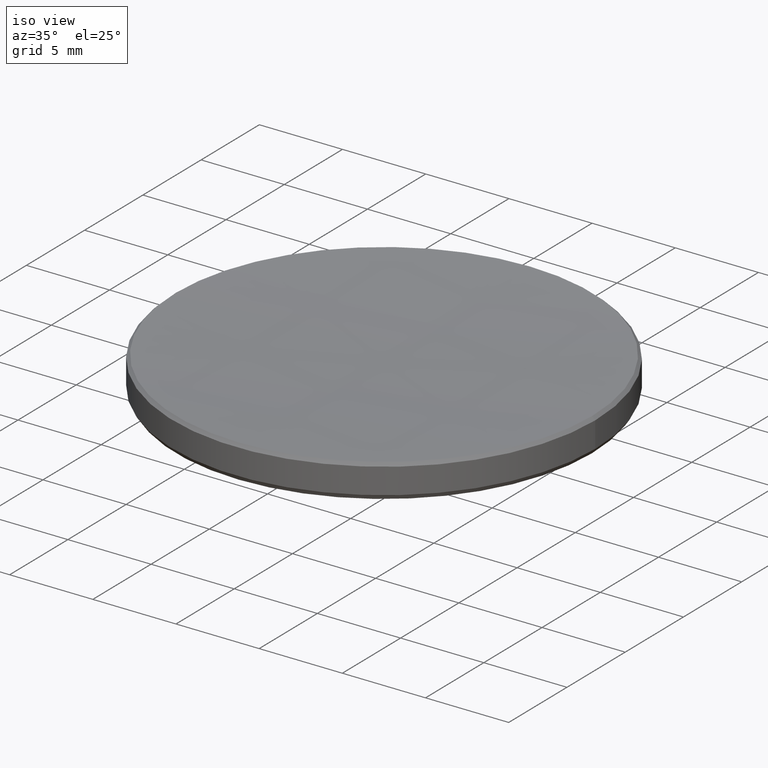
[diagram: clean part render]
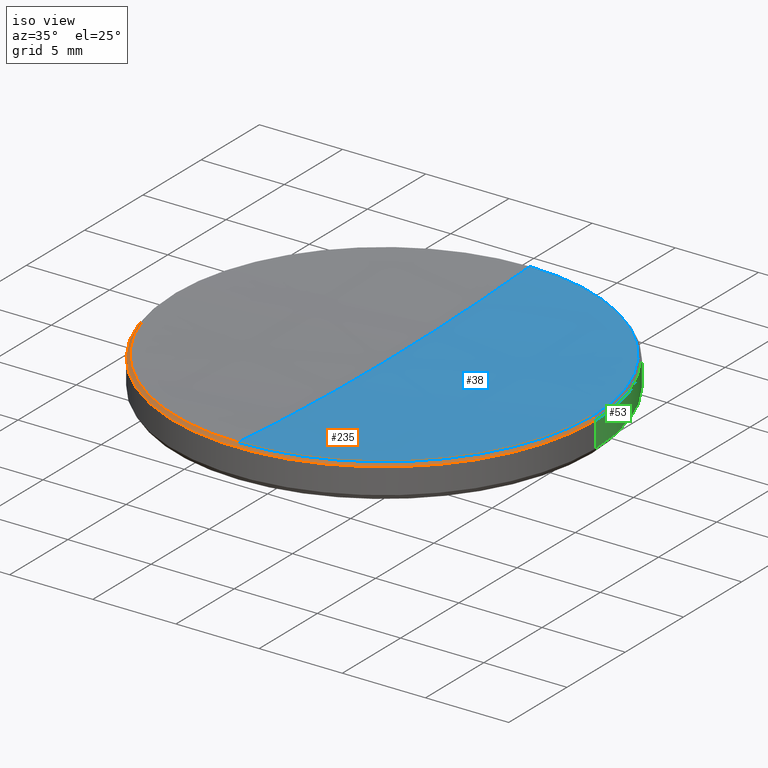
[diagram: same view with three faces highlighted in distinct colors, each labeled with its STEP entity id]
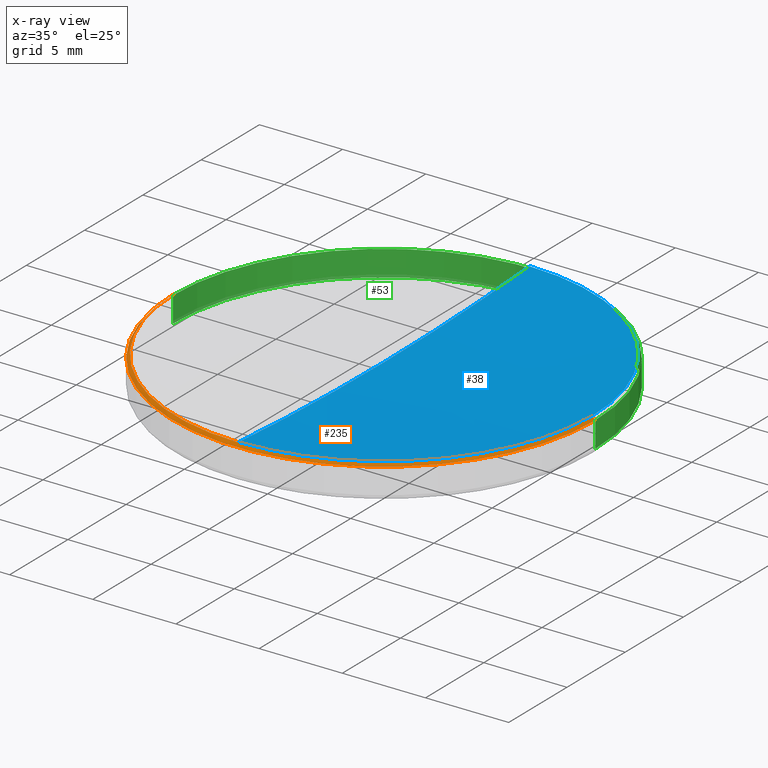
[diagram: x-ray of the same camera — body ghosted, the three highlighted faces saturated]
A machine part, iso view with three faces highlighted in distinct colors.
The next image is the same camera in x-ray (body ghosted, the three faces saturated) — at least one of them is partly hidden behind the body in this view.
Their STEP definitions:

[orange] entity #235 — the highlighted conical surface has half-angle 45 deg.
#5 = EDGE_CURVE ( 'NONE', #220, #319, #159, .T. ) ;
#6 = CARTESIAN_POINT ( 'NONE',  ( 12.51297231911478214, 1.532397149842335037E-15, 5.987027680885242731 ) ) ;
#8 = FACE_OUTER_BOUND ( 'NONE', #143, .T. ) ;
#10 = CARTESIAN_POINT ( 'NONE',  ( -12.69999999999999929, 0.000000000000000000, 5.800000000000027356 ) ) ;
#13 = ORIENTED_EDGE ( 'NONE', *, *, #5, .F. ) ;
#21 = VECTOR ( 'NONE', #104, 1000.000000000000114 ) ;
#25 = AXIS2_PLACEMENT_3D ( 'NONE', #93, #299, #273 ) ;
#34 = AXIS2_PLACEMENT_3D ( 'NONE', #145, #224, #153 ) ;
#57 = LINE ( 'NONE', #163, #21 ) ;
#62 = VECTOR ( 'NONE', #184, 1000.000000000000114 ) ;
#77 = CIRCLE ( 'NONE', #167, 12.51297231911478569 ) ;
#83 = EDGE_CURVE ( 'NONE', #298, #94, #183, .T. ) ;
#84 = CARTESIAN_POINT ( 'NONE',  ( 0.000000000000000000, 0.000000000000000000, 5.987027680885242731 ) ) ;
#93 = CARTESIAN_POINT ( 'NONE',  ( 0.000000000000000000, 0.000000000000000000, 5.987027680885187664 ) ) ;
#94 = VERTEX_POINT ( 'NONE', #10 ) ;
#99 = DIRECTION ( 'NONE',  ( -0.000000000000000000, -0.000000000000000000, 1.000000000000000000 ) ) ;
#104 = DIRECTION ( 'NONE',  ( -0.7071067811865507924, 0.000000000000000000, -0.7071067811865441310 ) ) ;
#109 = EDGE_CURVE ( 'NONE', #319, #166, #77, .T. ) ;
#116 = CONICAL_SURFACE ( 'NONE', #308, 12.51297231911478214, 0.7853981633974530530 ) ;
#143 = EDGE_LOOP ( 'NONE', ( #281, #169, #13, #276, #322 ) ) ;
#145 = CARTESIAN_POINT ( 'NONE',  ( 0.000000000000000000, 0.000000000000000000, 5.800000000000027356 ) ) ;
#153 = DIRECTION ( 'NONE',  ( 1.000000000000000000, 0.000000000000000000, 0.000000000000000000 ) ) ;
#159 = CIRCLE ( 'NONE', #25, 12.51297231911478569 ) ;
#163 = CARTESIAN_POINT ( 'NONE',  ( -12.51297231911478214, 0.000000000000000000, 5.987027680885242731 ) ) ;
#166 = VERTEX_POINT ( 'NONE', #260 ) ;
#167 = AXIS2_PLACEMENT_3D ( 'NONE', #204, #99, #258 ) ;
#169 = ORIENTED_EDGE ( 'NONE', *, *, #109, .F. ) ;
#170 = CARTESIAN_POINT ( 'NONE',  ( -1.532397149842306047E-15, -12.51297231911454411, 5.987027680885187664 ) ) ;
#183 = CIRCLE ( 'NONE', #34, 12.69999999999999929 ) ;
#184 = DIRECTION ( 'NONE',  ( 0.7071067811865507924, 8.659560562354974766E-17, -0.7071067811865441310 ) ) ;
#189 = DIRECTION ( 'NONE',  ( 0.000000000000000000, 0.000000000000000000, -1.000000000000000000 ) ) ;
#204 = CARTESIAN_POINT ( 'NONE',  ( 0.000000000000000000, 0.000000000000000000, 5.987027680885187664 ) ) ;
#207 = EDGE_CURVE ( 'NONE', #166, #298, #287, .T. ) ;
#211 = DIRECTION ( 'NONE',  ( -1.000000000000000000, 0.000000000000000000, 0.000000000000000000 ) ) ;
#212 = CARTESIAN_POINT ( 'NONE',  ( 12.69999999999999929, 1.555301434917138433E-15, 5.800000000000027356 ) ) ;
#219 = EDGE_CURVE ( 'NONE', #220, #94, #57, .T. ) ;
#220 = VERTEX_POINT ( 'NONE', #316 ) ;
#224 = DIRECTION ( 'NONE',  ( 0.000000000000000000, 0.000000000000000000, -1.000000000000000000 ) ) ;
#235 = ADVANCED_FACE ( 'NONE', ( #8 ), #116, .T. ) ;
#258 = DIRECTION ( 'NONE',  ( 1.000000000000000000, 0.000000000000000000, 0.000000000000000000 ) ) ;
#260 = CARTESIAN_POINT ( 'NONE',  ( 12.51297231911478569, 1.543849292379736932E-15, 5.987027680885187664 ) ) ;
#273 = DIRECTION ( 'NONE',  ( 1.000000000000000000, 0.000000000000000000, 0.000000000000000000 ) ) ;
#276 = ORIENTED_EDGE ( 'NONE', *, *, #219, .T. ) ;
#281 = ORIENTED_EDGE ( 'NONE', *, *, #207, .F. ) ;
#287 = LINE ( 'NONE', #6, #62 ) ;
#298 = VERTEX_POINT ( 'NONE', #212 ) ;
#299 = DIRECTION ( 'NONE',  ( -0.000000000000000000, -0.000000000000000000, 1.000000000000000000 ) ) ;
#308 = AXIS2_PLACEMENT_3D ( 'NONE', #84, #189, #211 ) ;
#316 = CARTESIAN_POINT ( 'NONE',  ( -12.51297231911478569, 0.000000000000000000, 5.987027680885187664 ) ) ;
#319 = VERTEX_POINT ( 'NONE', #170 ) ;
#322 = ORIENTED_EDGE ( 'NONE', *, *, #83, .F. ) ;

[blue] entity #38 — the highlighted spherical surface has radius 182.19 mm.
#3 = EDGE_CURVE ( 'NONE', #166, #197, #55, .T. ) ;
#12 = DIRECTION ( 'NONE',  ( -1.000000000000000000, 0.000000000000000000, 0.000000000000000000 ) ) ;
#16 = ORIENTED_EDGE ( 'NONE', *, *, #198, .T. ) ;
#33 = CARTESIAN_POINT ( 'NONE',  ( 0.000000000000000000, 1.115592001683281265E-14, 5.556818679172486952 ) ) ;
#38 = ADVANCED_FACE ( 'NONE', ( #328 ), #148, .F. ) ;
#45 = AXIS2_PLACEMENT_3D ( 'NONE', #252, #294, #321 ) ;
#54 = CIRCLE ( 'NONE', #96, 182.1899999999999977 ) ;
#55 = CIRCLE ( 'NONE', #45, 12.51297231911478569 ) ;
#60 = CARTESIAN_POINT ( 'NONE',  ( 0.000000000000000000, 0.000000000000000000, 187.7468186791724918 ) ) ;
#64 = DIRECTION ( 'NONE',  ( -1.000000000000000000, 1.224646799147353207E-16, 0.000000000000000000 ) ) ;
#65 = VERTEX_POINT ( 'NONE', #33 ) ;
#70 = CARTESIAN_POINT ( 'NONE',  ( 0.000000000000000000, 0.000000000000000000, 187.7468186791724918 ) ) ;
#77 = CIRCLE ( 'NONE', #167, 12.51297231911478569 ) ;
#85 = EDGE_LOOP ( 'NONE', ( #122, #16, #216, #152 ) ) ;
#96 = AXIS2_PLACEMENT_3D ( 'NONE', #290, #64, #265 ) ;
#97 = DIRECTION ( 'NONE',  ( 0.000000000000000000, 1.000000000000000000, 0.000000000000000000 ) ) ;
#99 = DIRECTION ( 'NONE',  ( -0.000000000000000000, -0.000000000000000000, 1.000000000000000000 ) ) ;
#109 = EDGE_CURVE ( 'NONE', #319, #166, #77, .T. ) ;
#122 = ORIENTED_EDGE ( 'NONE', *, *, #310, .F. ) ;
#148 = SPHERICAL_SURFACE ( 'NONE', #234, 182.1899999999999977 ) ;
#152 = ORIENTED_EDGE ( 'NONE', *, *, #3, .T. ) ;
#166 = VERTEX_POINT ( 'NONE', #260 ) ;
#167 = AXIS2_PLACEMENT_3D ( 'NONE', #204, #99, #258 ) ;
#170 = CARTESIAN_POINT ( 'NONE',  ( -1.532397149842306047E-15, -12.51297231911454411, 5.987027680885187664 ) ) ;
#181 = AXIS2_PLACEMENT_3D ( 'NONE', #60, #315, #188 ) ;
#188 = DIRECTION ( 'NONE',  ( 0.000000000000000000, 0.000000000000000000, -1.000000000000000000 ) ) ;
#197 = VERTEX_POINT ( 'NONE', #292 ) ;
#198 = EDGE_CURVE ( 'NONE', #65, #319, #54, .T. ) ;
#204 = CARTESIAN_POINT ( 'NONE',  ( 0.000000000000000000, 0.000000000000000000, 5.987027680885187664 ) ) ;
#216 = ORIENTED_EDGE ( 'NONE', *, *, #109, .T. ) ;
#234 = AXIS2_PLACEMENT_3D ( 'NONE', #70, #12, #97 ) ;
#252 = CARTESIAN_POINT ( 'NONE',  ( 0.000000000000000000, 0.000000000000000000, 5.987027680885187664 ) ) ;
#258 = DIRECTION ( 'NONE',  ( 1.000000000000000000, 0.000000000000000000, 0.000000000000000000 ) ) ;
#260 = CARTESIAN_POINT ( 'NONE',  ( 12.51297231911478569, 1.543849292379736932E-15, 5.987027680885187664 ) ) ;
#265 = DIRECTION ( 'NONE',  ( -1.224646799147352961E-16, -1.000000000000000000, 0.000000000000000000 ) ) ;
#290 = CARTESIAN_POINT ( 'NONE',  ( 0.000000000000000000, 0.000000000000000000, 187.7468186791724918 ) ) ;
#292 = CARTESIAN_POINT ( 'NONE',  ( 0.000000000000000000, 12.51297231911454411, 5.987027680885187664 ) ) ;
#294 = DIRECTION ( 'NONE',  ( -0.000000000000000000, -0.000000000000000000, 1.000000000000000000 ) ) ;
#305 = CIRCLE ( 'NONE', #181, 182.1899999999999977 ) ;
#310 = EDGE_CURVE ( 'NONE', #65, #197, #305, .T. ) ;
#315 = DIRECTION ( 'NONE',  ( 1.000000000000000000, 0.000000000000000000, 0.000000000000000000 ) ) ;
#319 = VERTEX_POINT ( 'NONE', #170 ) ;
#321 = DIRECTION ( 'NONE',  ( 1.000000000000000000, 0.000000000000000000, 0.000000000000000000 ) ) ;
#328 = FACE_OUTER_BOUND ( 'NONE', #85, .T. ) ;

[green] entity #53 — the highlighted cylindrical surface (partial cylindrical patch) has radius 12.7 mm, axis along (-0, -0, -1).
#10 = CARTESIAN_POINT ( 'NONE',  ( -12.69999999999999929, 0.000000000000000000, 5.800000000000027356 ) ) ;
#15 = CARTESIAN_POINT ( 'NONE',  ( 0.000000000000000000, 0.000000000000000000, 10.00000000000000000 ) ) ;
#37 = ORIENTED_EDGE ( 'NONE', *, *, #313, .F. ) ;
#53 = ADVANCED_FACE ( 'NONE', ( #87 ), #173, .T. ) ;
#61 = LINE ( 'NONE', #245, #314 ) ;
#74 = CARTESIAN_POINT ( 'NONE',  ( 0.000000000000000000, 0.000000000000000000, 5.800000000000027356 ) ) ;
#78 = DIRECTION ( 'NONE',  ( -1.000000000000000000, 0.000000000000000000, 0.000000000000000000 ) ) ;
#86 = VECTOR ( 'NONE', #238, 1000.000000000000000 ) ;
#87 = FACE_OUTER_BOUND ( 'NONE', #151, .T. ) ;
#94 = VERTEX_POINT ( 'NONE', #10 ) ;
#95 = DIRECTION ( 'NONE',  ( -1.000000000000000000, 0.000000000000000000, 0.000000000000000000 ) ) ;
#112 = ORIENTED_EDGE ( 'NONE', *, *, #304, .T. ) ;
#124 = AXIS2_PLACEMENT_3D ( 'NONE', #135, #288, #78 ) ;
#125 = AXIS2_PLACEMENT_3D ( 'NONE', #74, #231, #332 ) ;
#135 = CARTESIAN_POINT ( 'NONE',  ( 0.000000000000000000, 0.000000000000000000, 4.253353967830220128 ) ) ;
#151 = EDGE_LOOP ( 'NONE', ( #192, #112, #165, #37 ) ) ;
#162 = CARTESIAN_POINT ( 'NONE',  ( -12.69999999999999929, 0.000000000000000000, 4.253353967830220128 ) ) ;
#165 = ORIENTED_EDGE ( 'NONE', *, *, #247, .T. ) ;
#173 = CYLINDRICAL_SURFACE ( 'NONE', #176, 12.69999999999999929 ) ;
#176 = AXIS2_PLACEMENT_3D ( 'NONE', #15, #196, #95 ) ;
#185 = EDGE_CURVE ( 'NONE', #94, #298, #270, .T. ) ;
#191 = CIRCLE ( 'NONE', #124, 12.69999999999999929 ) ;
#192 = ORIENTED_EDGE ( 'NONE', *, *, #185, .T. ) ;
#195 = VERTEX_POINT ( 'NONE', #203 ) ;
#196 = DIRECTION ( 'NONE',  ( -0.000000000000000000, -0.000000000000000000, -1.000000000000000000 ) ) ;
#203 = CARTESIAN_POINT ( 'NONE',  ( 12.69999999999999929, 1.555301434917138433E-15, 4.253353967830220128 ) ) ;
#212 = CARTESIAN_POINT ( 'NONE',  ( 12.69999999999999929, 1.555301434917138433E-15, 5.800000000000027356 ) ) ;
#223 = DIRECTION ( 'NONE',  ( -0.000000000000000000, -0.000000000000000000, -1.000000000000000000 ) ) ;
#231 = DIRECTION ( 'NONE',  ( 0.000000000000000000, 0.000000000000000000, -1.000000000000000000 ) ) ;
#238 = DIRECTION ( 'NONE',  ( -0.000000000000000000, -0.000000000000000000, -1.000000000000000000 ) ) ;
#245 = CARTESIAN_POINT ( 'NONE',  ( -12.69999999999999929, 0.000000000000000000, 10.00000000000000000 ) ) ;
#247 = EDGE_CURVE ( 'NONE', #195, #293, #191, .T. ) ;
#264 = CARTESIAN_POINT ( 'NONE',  ( 12.69999999999999929, 1.555301434917138433E-15, 10.00000000000000000 ) ) ;
#267 = LINE ( 'NONE', #264, #86 ) ;
#270 = CIRCLE ( 'NONE', #125, 12.69999999999999929 ) ;
#288 = DIRECTION ( 'NONE',  ( -0.000000000000000000, -0.000000000000000000, 1.000000000000000000 ) ) ;
#293 = VERTEX_POINT ( 'NONE', #162 ) ;
#298 = VERTEX_POINT ( 'NONE', #212 ) ;
#304 = EDGE_CURVE ( 'NONE', #298, #195, #267, .T. ) ;
#313 = EDGE_CURVE ( 'NONE', #94, #293, #61, .T. ) ;
#314 = VECTOR ( 'NONE', #223, 1000.000000000000000 ) ;
#332 = DIRECTION ( 'NONE',  ( 1.000000000000000000, 0.000000000000000000, 0.000000000000000000 ) ) ;